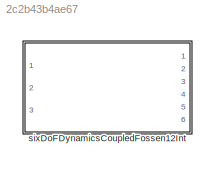
MODEL slx_2c2b43b4ae67
KIND library
CONFIG AbsTol = auto
CONFIG EnableMultiTasking = off
CONFIG FixedStep = auto
CONFIG MaxStep = auto
CONFIG MinStep = auto
CONFIG RelTol = 1e-3
CONFIG SampleTimeConstraint = Unconstrained
CONFIG Solver = VariableStepAuto
CONFIG SolverName = VariableStepAuto
CONFIG StartTime = 0.0
CONFIG StopTime = 10.0
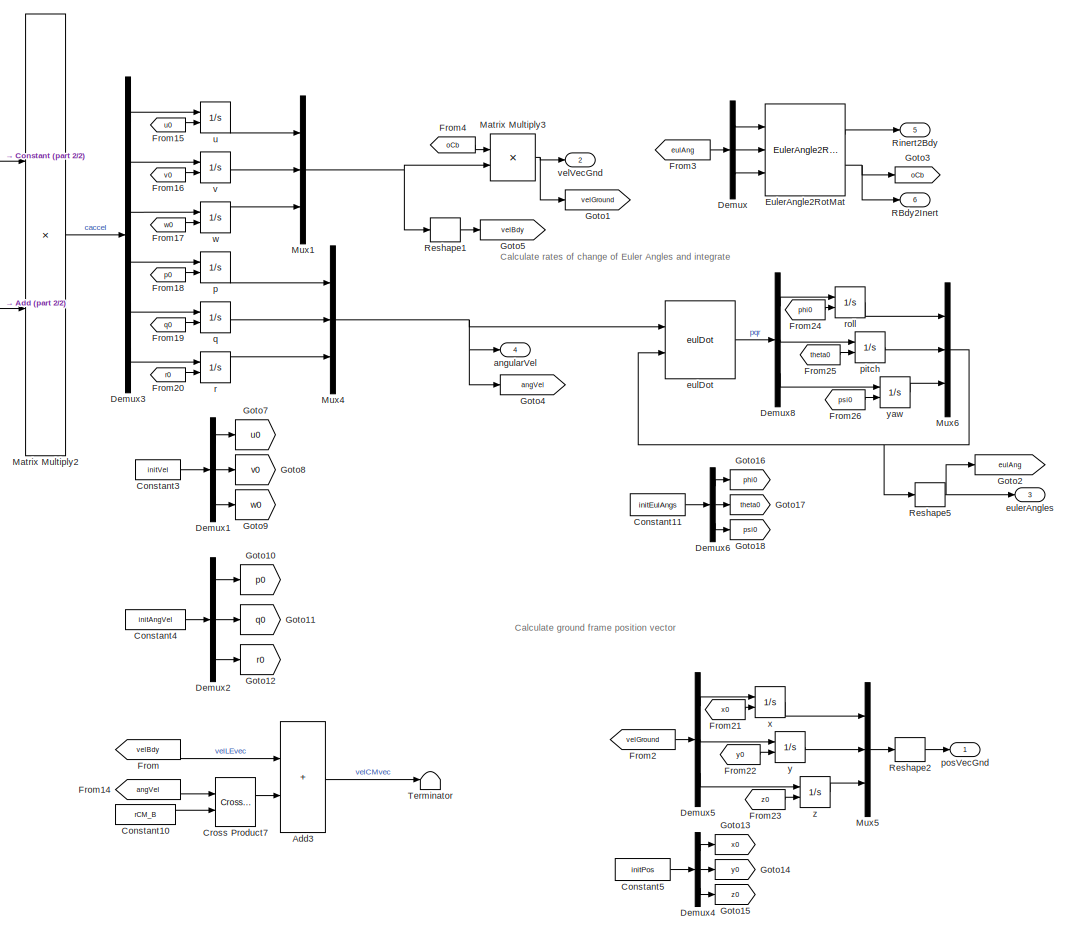
[diagram: sixDoFDynamicsCoupledFossen12Int - part 1/2, center side, full height]
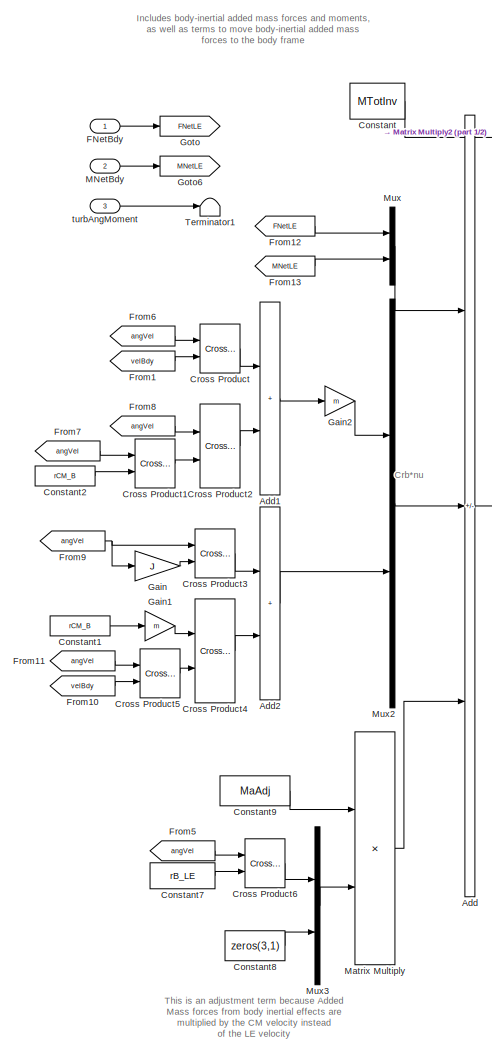
[diagram: sixDoFDynamicsCoupledFossen12Int - part 2/2, left side, full height]
BLOCK [SubSystem] sixDoFDynamicsCoupledFossen12Int
  Ports = [3, 6]
  RequestExecContextInheritance = off
  VariantControl = VSS_sixDoFDynamics_sixDoFDynamicsCoupledFossen
BLOCK [Sum] sixDoFDynamicsCoupledFossen12Int/Add
  IconShape = rectangular
  Inputs = +-+
  Ports = [3, 1]
BLOCK [Sum] sixDoFDynamicsCoupledFossen12Int/Add1
  IconShape = rectangular
  Ports = [2, 1]
BLOCK [Sum] sixDoFDynamicsCoupledFossen12Int/Add2
  IconShape = rectangular
  Ports = [2, 1]
BLOCK [Sum] sixDoFDynamicsCoupledFossen12Int/Add3
  IconShape = rectangular
  Ports = [2, 1]
BLOCK [Constant] sixDoFDynamicsCoupledFossen12Int/Constant
  Value = MTotInv
  VectorParams1D = off
BLOCK [Constant] sixDoFDynamicsCoupledFossen12Int/Constant1
  Value = rCM_B
BLOCK [Constant] sixDoFDynamicsCoupledFossen12Int/Constant10
  Value = rCM_B
BLOCK [Constant] sixDoFDynamicsCoupledFossen12Int/Constant11
  Value = initEulAngs
BLOCK [Constant] sixDoFDynamicsCoupledFossen12Int/Constant2
  Value = rCM_B
BLOCK [Constant] sixDoFDynamicsCoupledFossen12Int/Constant3
  Value = initVel
BLOCK [Constant] sixDoFDynamicsCoupledFossen12Int/Constant4
  Value = initAngVel
BLOCK [Constant] sixDoFDynamicsCoupledFossen12Int/Constant5
  Value = initPos
BLOCK [Constant] sixDoFDynamicsCoupledFossen12Int/Constant7
  Value = rB_LE
BLOCK [Constant] sixDoFDynamicsCoupledFossen12Int/Constant8
  Value = zeros(3,1)
BLOCK [Constant] sixDoFDynamicsCoupledFossen12Int/Constant9
  Value = MaAdj
BLOCK [Reference] sixDoFDynamicsCoupledFossen12Int/Cross Product  REF=vrlib/Utilities/Cross Product
  Ports = [2, 1]
  SourceBlock = vrlib/Utilities/Cross Product
  SourceProductBaseCode = SL
  SourceType = Cross Product
BLOCK [Reference] sixDoFDynamicsCoupledFossen12Int/Cross Product1  REF=vrlib/Utilities/Cross Product
  Ports = [2, 1]
  SourceBlock = vrlib/Utilities/Cross Product
  SourceProductBaseCode = SL
  SourceType = Cross Product
BLOCK [Reference] sixDoFDynamicsCoupledFossen12Int/Cross Product2  REF=vrlib/Utilities/Cross Product
  Ports = [2, 1]
  SourceBlock = vrlib/Utilities/Cross Product
  SourceProductBaseCode = SL
  SourceType = Cross Product
BLOCK [Reference] sixDoFDynamicsCoupledFossen12Int/Cross Product3  REF=vrlib/Utilities/Cross Product
  Ports = [2, 1]
  SourceBlock = vrlib/Utilities/Cross Product
  SourceProductBaseCode = SL
  SourceType = Cross Product
BLOCK [Reference] sixDoFDynamicsCoupledFossen12Int/Cross Product4  REF=vrlib/Utilities/Cross Product
  Ports = [2, 1]
  SourceBlock = vrlib/Utilities/Cross Product
  SourceProductBaseCode = SL
  SourceType = Cross Product
BLOCK [Reference] sixDoFDynamicsCoupledFossen12Int/Cross Product5  REF=vrlib/Utilities/Cross Product
  Ports = [2, 1]
  SourceBlock = vrlib/Utilities/Cross Product
  SourceProductBaseCode = SL
  SourceType = Cross Product
BLOCK [Reference] sixDoFDynamicsCoupledFossen12Int/Cross Product6  REF=vrlib/Utilities/Cross Product
  Ports = [2, 1]
  SourceBlock = vrlib/Utilities/Cross Product
  SourceProductBaseCode = SL
  SourceType = Cross Product
BLOCK [Reference] sixDoFDynamicsCoupledFossen12Int/Cross Product7  REF=vrlib/Utilities/Cross Product
  Ports = [2, 1]
  SourceBlock = vrlib/Utilities/Cross Product
  SourceProductBaseCode = SL
  SourceType = Cross Product
BLOCK [Demux] sixDoFDynamicsCoupledFossen12Int/Demux
  Outputs = 3
  Ports = [1, 3]
BLOCK [Demux] sixDoFDynamicsCoupledFossen12Int/Demux1
  Outputs = 3
  Ports = [1, 3]
BLOCK [Demux] sixDoFDynamicsCoupledFossen12Int/Demux2
  Outputs = 3
  Ports = [1, 3]
BLOCK [Demux] sixDoFDynamicsCoupledFossen12Int/Demux3
  Outputs = 6
  Ports = [1, 6]
BLOCK [Demux] sixDoFDynamicsCoupledFossen12Int/Demux4
  Outputs = 3
  Ports = [1, 3]
BLOCK [Demux] sixDoFDynamicsCoupledFossen12Int/Demux5
  Outputs = 3
  Ports = [1, 3]
BLOCK [Demux] sixDoFDynamicsCoupledFossen12Int/Demux6
  Outputs = 3
  Ports = [1, 3]
BLOCK [Demux] sixDoFDynamicsCoupledFossen12Int/Demux8
  Outputs = 3
  Ports = [1, 3]
BLOCK [Reference] sixDoFDynamicsCoupledFossen12Int/EulerAngle2RotMat  REF=eulAng2RotMat_ul/EulerAngle2RotMat
  Ports = [3, 2]
  SourceBlock = eulAng2RotMat_ul/EulerAngle2RotMat
  SourceType = SubSystem
BLOCK [Inport] sixDoFDynamicsCoupledFossen12Int/FNetBdy
BLOCK [From] sixDoFDynamicsCoupledFossen12Int/From
  GotoTag = velBdy
BLOCK [From] sixDoFDynamicsCoupledFossen12Int/From1
  GotoTag = velBdy
BLOCK [From] sixDoFDynamicsCoupledFossen12Int/From10
  GotoTag = velBdy
BLOCK [From] sixDoFDynamicsCoupledFossen12Int/From11
  GotoTag = angVel
BLOCK [From] sixDoFDynamicsCoupledFossen12Int/From12
  GotoTag = FNetLE
BLOCK [From] sixDoFDynamicsCoupledFossen12Int/From13
  GotoTag = MNetLE
BLOCK [From] sixDoFDynamicsCoupledFossen12Int/From14
  GotoTag = angVel
BLOCK [From] sixDoFDynamicsCoupledFossen12Int/From15
  GotoTag = u0
BLOCK [From] sixDoFDynamicsCoupledFossen12Int/From16
  GotoTag = v0
BLOCK [From] sixDoFDynamicsCoupledFossen12Int/From17
  GotoTag = w0
BLOCK [From] sixDoFDynamicsCoupledFossen12Int/From18
  GotoTag = p0
BLOCK [From] sixDoFDynamicsCoupledFossen12Int/From19
  GotoTag = q0
BLOCK [From] sixDoFDynamicsCoupledFossen12Int/From2
  GotoTag = velGround
BLOCK [From] sixDoFDynamicsCoupledFossen12Int/From20
  GotoTag = r0
BLOCK [From] sixDoFDynamicsCoupledFossen12Int/From21
  GotoTag = x0
BLOCK [From] sixDoFDynamicsCoupledFossen12Int/From22
  GotoTag = y0
BLOCK [From] sixDoFDynamicsCoupledFossen12Int/From23
  GotoTag = z0
BLOCK [From] sixDoFDynamicsCoupledFossen12Int/From24
  GotoTag = phi0
BLOCK [From] sixDoFDynamicsCoupledFossen12Int/From25
  GotoTag = theta0
BLOCK [From] sixDoFDynamicsCoupledFossen12Int/From26
  GotoTag = psi0
BLOCK [From] sixDoFDynamicsCoupledFossen12Int/From3
  GotoTag = eulAng
BLOCK [From] sixDoFDynamicsCoupledFossen12Int/From4
  GotoTag = oCb
BLOCK [From] sixDoFDynamicsCoupledFossen12Int/From5
  GotoTag = angVel
BLOCK [From] sixDoFDynamicsCoupledFossen12Int/From6
  GotoTag = angVel
BLOCK [From] sixDoFDynamicsCoupledFossen12Int/From7
  GotoTag = angVel
BLOCK [From] sixDoFDynamicsCoupledFossen12Int/From8
  GotoTag = angVel
BLOCK [From] sixDoFDynamicsCoupledFossen12Int/From9
  GotoTag = angVel
BLOCK [Gain] sixDoFDynamicsCoupledFossen12Int/Gain
  Gain = J
  Multiplication = Matrix(K*u)
BLOCK [Gain] sixDoFDynamicsCoupledFossen12Int/Gain1
  Gain = m
BLOCK [Gain] sixDoFDynamicsCoupledFossen12Int/Gain2
  Gain = m
BLOCK [Goto] sixDoFDynamicsCoupledFossen12Int/Goto
  GotoTag = FNetLE
BLOCK [Goto] sixDoFDynamicsCoupledFossen12Int/Goto1
  GotoTag = velGround
BLOCK [Goto] sixDoFDynamicsCoupledFossen12Int/Goto10
  GotoTag = p0
BLOCK [Goto] sixDoFDynamicsCoupledFossen12Int/Goto11
  GotoTag = q0
BLOCK [Goto] sixDoFDynamicsCoupledFossen12Int/Goto12
  GotoTag = r0
BLOCK [Goto] sixDoFDynamicsCoupledFossen12Int/Goto13
  GotoTag = x0
BLOCK [Goto] sixDoFDynamicsCoupledFossen12Int/Goto14
  GotoTag = y0
BLOCK [Goto] sixDoFDynamicsCoupledFossen12Int/Goto15
  GotoTag = z0
BLOCK [Goto] sixDoFDynamicsCoupledFossen12Int/Goto16
  GotoTag = phi0
BLOCK [Goto] sixDoFDynamicsCoupledFossen12Int/Goto17
  GotoTag = theta0
BLOCK [Goto] sixDoFDynamicsCoupledFossen12Int/Goto18
  GotoTag = psi0
BLOCK [Goto] sixDoFDynamicsCoupledFossen12Int/Goto2
  GotoTag = eulAng
BLOCK [Goto] sixDoFDynamicsCoupledFossen12Int/Goto3
  GotoTag = oCb
BLOCK [Goto] sixDoFDynamicsCoupledFossen12Int/Goto4
  GotoTag = angVel
BLOCK [Goto] sixDoFDynamicsCoupledFossen12Int/Goto5
  GotoTag = velBdy
BLOCK [Goto] sixDoFDynamicsCoupledFossen12Int/Goto6
  GotoTag = MNetLE
BLOCK [Goto] sixDoFDynamicsCoupledFossen12Int/Goto7
  GotoTag = u0
BLOCK [Goto] sixDoFDynamicsCoupledFossen12Int/Goto8
  GotoTag = v0
BLOCK [Goto] sixDoFDynamicsCoupledFossen12Int/Goto9
  GotoTag = w0
BLOCK [Inport] sixDoFDynamicsCoupledFossen12Int/MNetBdy
  Port = 2
BLOCK [Product] sixDoFDynamicsCoupledFossen12Int/Matrix Multiply
  Multiplication = Matrix(*)
  Ports = [2, 1]
BLOCK [Product] sixDoFDynamicsCoupledFossen12Int/Matrix Multiply2
  Multiplication = Matrix(*)
  Ports = [2, 1]
BLOCK [Product] sixDoFDynamicsCoupledFossen12Int/Matrix Multiply3
  Multiplication = Matrix(*)
  Ports = [2, 1]
BLOCK [Mux] sixDoFDynamicsCoupledFossen12Int/Mux
  DisplayOption = bar
  Inputs = 2
  Ports = [2, 1]
BLOCK [Mux] sixDoFDynamicsCoupledFossen12Int/Mux1
  DisplayOption = bar
  Inputs = 3
  Ports = [3, 1]
BLOCK [Mux] sixDoFDynamicsCoupledFossen12Int/Mux2
  DisplayOption = bar
  Inputs = 2
  Ports = [2, 1]
BLOCK [Mux] sixDoFDynamicsCoupledFossen12Int/Mux3
  DisplayOption = bar
  Inputs = 2
  Ports = [2, 1]
BLOCK [Mux] sixDoFDynamicsCoupledFossen12Int/Mux4
  DisplayOption = bar
  Inputs = 3
  Ports = [3, 1]
BLOCK [Mux] sixDoFDynamicsCoupledFossen12Int/Mux5
  DisplayOption = bar
  Inputs = 3
  Ports = [3, 1]
BLOCK [Mux] sixDoFDynamicsCoupledFossen12Int/Mux6
  DisplayOption = bar
  Inputs = 3
  Ports = [3, 1]
BLOCK [Outport] sixDoFDynamicsCoupledFossen12Int/RBdy2Inert
  Port = 6
  VectorParamsAs1DForOutWhenUnconnected = off
BLOCK [Reshape] sixDoFDynamicsCoupledFossen12Int/Reshape1
  OutputDimensionality = Column vector (2-D)
  Ports = [1, 1]
BLOCK [Reshape] sixDoFDynamicsCoupledFossen12Int/Reshape2
  OutputDimensionality = Column vector (2-D)
  Ports = [1, 1]
BLOCK [Reshape] sixDoFDynamicsCoupledFossen12Int/Reshape5
  OutputDimensionality = Column vector (2-D)
  Ports = [1, 1]
BLOCK [Outport] sixDoFDynamicsCoupledFossen12Int/Rinert2Bdy
  Port = 5
  VectorParamsAs1DForOutWhenUnconnected = off
BLOCK [Terminator] sixDoFDynamicsCoupledFossen12Int/Terminator
BLOCK [Terminator] sixDoFDynamicsCoupledFossen12Int/Terminator1
BLOCK [Outport] sixDoFDynamicsCoupledFossen12Int/angularVel
  Port = 4
  VectorParamsAs1DForOutWhenUnconnected = off
BLOCK [Reference] sixDoFDynamicsCoupledFossen12Int/eulDot  REF=eulDot/eulDot
  Ports = [2, 1]
  SourceBlock = eulDot/eulDot
  SourceType = SubSystem
BLOCK [Outport] sixDoFDynamicsCoupledFossen12Int/eulerAngles
  Port = 3
  VectorParamsAs1DForOutWhenUnconnected = off
BLOCK [Integrator] sixDoFDynamicsCoupledFossen12Int/p
  ContinuousStateAttributes = 'p'
  InitialConditionSource = external
  Ports = [2, 1]
BLOCK [Integrator] sixDoFDynamicsCoupledFossen12Int/pitch
  ContinuousStateAttributes = 'pitch'
  InitialConditionSource = external
  Ports = [2, 1]
BLOCK [Outport] sixDoFDynamicsCoupledFossen12Int/posVecGnd
  VectorParamsAs1DForOutWhenUnconnected = off
BLOCK [Integrator] sixDoFDynamicsCoupledFossen12Int/q
  ContinuousStateAttributes = 'q'
  InitialConditionSource = external
  Ports = [2, 1]
BLOCK [Integrator] sixDoFDynamicsCoupledFossen12Int/r
  ContinuousStateAttributes = 'r'
  InitialConditionSource = external
  Ports = [2, 1]
BLOCK [Integrator] sixDoFDynamicsCoupledFossen12Int/roll
  ContinuousStateAttributes = 'roll'
  InitialConditionSource = external
  Ports = [2, 1]
BLOCK [Inport] sixDoFDynamicsCoupledFossen12Int/turbAngMoment
  Port = 3
BLOCK [Integrator] sixDoFDynamicsCoupledFossen12Int/u
  ContinuousStateAttributes = 'u'
  InitialConditionSource = external
  Ports = [2, 1]
BLOCK [Integrator] sixDoFDynamicsCoupledFossen12Int/v
  ContinuousStateAttributes = 'v'
  InitialConditionSource = external
  Ports = [2, 1]
BLOCK [Outport] sixDoFDynamicsCoupledFossen12Int/velVecGnd
  Port = 2
  VectorParamsAs1DForOutWhenUnconnected = off
BLOCK [Integrator] sixDoFDynamicsCoupledFossen12Int/w
  ContinuousStateAttributes = 'w'
  InitialConditionSource = external
  Ports = [2, 1]
BLOCK [Integrator] sixDoFDynamicsCoupledFossen12Int/x
  ContinuousStateAttributes = 'x'
  InitialConditionSource = external
  Ports = [2, 1]
BLOCK [Integrator] sixDoFDynamicsCoupledFossen12Int/y
  ContinuousStateAttributes = 'y'
  InitialConditionSource = external
  Ports = [2, 1]
BLOCK [Integrator] sixDoFDynamicsCoupledFossen12Int/yaw
  ContinuousStateAttributes = 'yaw'
  InitialConditionSource = external
  Ports = [2, 1]
BLOCK [Integrator] sixDoFDynamicsCoupledFossen12Int/z
  ContinuousStateAttributes = 'z'
  InitialConditionSource = external
  Ports = [2, 1]
ANNOTATION sixDoFDynamicsCoupledFossen12Int: Includes body-inertial added mass forces and moments, as well as terms to move body-inertial added mass forces to the body frame
ANNOTATION sixDoFDynamicsCoupledFossen12Int: This is an adjustment term because Added Mass forces from body inertial effects are multiplied by the CM velocity instead of the LE velocity
ANNOTATION sixDoFDynamicsCoupledFossen12Int: Calculate ground frame position vector
ANNOTATION sixDoFDynamicsCoupledFossen12Int: Calculate rates of change of Euler Angles and integrate
ANNOTATION sixDoFDynamicsCoupledFossen12Int: Crb*nu
LINE sixDoFDynamicsCoupledFossen12Int/Add1:1 -> sixDoFDynamicsCoupledFossen12Int/Gain2:1
LINE sixDoFDynamicsCoupledFossen12Int/Add2:1 -> sixDoFDynamicsCoupledFossen12Int/Mux2:2
LINE sixDoFDynamicsCoupledFossen12Int/Add3:1 -> sixDoFDynamicsCoupledFossen12Int/Terminator:1
LINE sixDoFDynamicsCoupledFossen12Int/Add:1 -> sixDoFDynamicsCoupledFossen12Int/Matrix Multiply2:2
LINE sixDoFDynamicsCoupledFossen12Int/Constant10:1 -> sixDoFDynamicsCoupledFossen12Int/Cross Product7:2
LINE sixDoFDynamicsCoupledFossen12Int/Constant11:1 -> sixDoFDynamicsCoupledFossen12Int/Demux6:1
LINE sixDoFDynamicsCoupledFossen12Int/Constant1:1 -> sixDoFDynamicsCoupledFossen12Int/Gain1:1
LINE sixDoFDynamicsCoupledFossen12Int/Constant2:1 -> sixDoFDynamicsCoupledFossen12Int/Cross Product1:2
LINE sixDoFDynamicsCoupledFossen12Int/Constant3:1 -> sixDoFDynamicsCoupledFossen12Int/Demux1:1
LINE sixDoFDynamicsCoupledFossen12Int/Constant4:1 -> sixDoFDynamicsCoupledFossen12Int/Demux2:1
LINE sixDoFDynamicsCoupledFossen12Int/Constant5:1 -> sixDoFDynamicsCoupledFossen12Int/Demux4:1
LINE sixDoFDynamicsCoupledFossen12Int/Constant7:1 -> sixDoFDynamicsCoupledFossen12Int/Cross Product6:2
LINE sixDoFDynamicsCoupledFossen12Int/Constant8:1 -> sixDoFDynamicsCoupledFossen12Int/Mux3:2
LINE sixDoFDynamicsCoupledFossen12Int/Constant9:1 -> sixDoFDynamicsCoupledFossen12Int/Matrix Multiply:1
LINE sixDoFDynamicsCoupledFossen12Int/Constant:1 -> sixDoFDynamicsCoupledFossen12Int/Matrix Multiply2:1
LINE sixDoFDynamicsCoupledFossen12Int/Cross Product1:1 -> sixDoFDynamicsCoupledFossen12Int/Cross Product2:2
LINE sixDoFDynamicsCoupledFossen12Int/Cross Product2:1 -> sixDoFDynamicsCoupledFossen12Int/Add1:2
LINE sixDoFDynamicsCoupledFossen12Int/Cross Product3:1 -> sixDoFDynamicsCoupledFossen12Int/Add2:1
LINE sixDoFDynamicsCoupledFossen12Int/Cross Product4:1 -> sixDoFDynamicsCoupledFossen12Int/Add2:2
LINE sixDoFDynamicsCoupledFossen12Int/Cross Product5:1 -> sixDoFDynamicsCoupledFossen12Int/Cross Product4:2
LINE sixDoFDynamicsCoupledFossen12Int/Cross Product6:1 -> sixDoFDynamicsCoupledFossen12Int/Mux3:1
LINE sixDoFDynamicsCoupledFossen12Int/Cross Product7:1 -> sixDoFDynamicsCoupledFossen12Int/Add3:2
LINE sixDoFDynamicsCoupledFossen12Int/Cross Product:1 -> sixDoFDynamicsCoupledFossen12Int/Add1:1
LINE sixDoFDynamicsCoupledFossen12Int/Demux1:1 -> sixDoFDynamicsCoupledFossen12Int/Goto7:1
LINE sixDoFDynamicsCoupledFossen12Int/Demux1:2 -> sixDoFDynamicsCoupledFossen12Int/Goto8:1
LINE sixDoFDynamicsCoupledFossen12Int/Demux1:3 -> sixDoFDynamicsCoupledFossen12Int/Goto9:1
LINE sixDoFDynamicsCoupledFossen12Int/Demux2:1 -> sixDoFDynamicsCoupledFossen12Int/Goto10:1
LINE sixDoFDynamicsCoupledFossen12Int/Demux2:2 -> sixDoFDynamicsCoupledFossen12Int/Goto11:1
LINE sixDoFDynamicsCoupledFossen12Int/Demux2:3 -> sixDoFDynamicsCoupledFossen12Int/Goto12:1
LINE sixDoFDynamicsCoupledFossen12Int/Demux3:1 -> sixDoFDynamicsCoupledFossen12Int/u:1
LINE sixDoFDynamicsCoupledFossen12Int/Demux3:2 -> sixDoFDynamicsCoupledFossen12Int/v:1
LINE sixDoFDynamicsCoupledFossen12Int/Demux3:3 -> sixDoFDynamicsCoupledFossen12Int/w:1
LINE sixDoFDynamicsCoupledFossen12Int/Demux3:4 -> sixDoFDynamicsCoupledFossen12Int/p:1
LINE sixDoFDynamicsCoupledFossen12Int/Demux3:5 -> sixDoFDynamicsCoupledFossen12Int/q:1
LINE sixDoFDynamicsCoupledFossen12Int/Demux3:6 -> sixDoFDynamicsCoupledFossen12Int/r:1
LINE sixDoFDynamicsCoupledFossen12Int/Demux4:1 -> sixDoFDynamicsCoupledFossen12Int/Goto13:1
LINE sixDoFDynamicsCoupledFossen12Int/Demux4:2 -> sixDoFDynamicsCoupledFossen12Int/Goto14:1
LINE sixDoFDynamicsCoupledFossen12Int/Demux4:3 -> sixDoFDynamicsCoupledFossen12Int/Goto15:1
LINE sixDoFDynamicsCoupledFossen12Int/Demux5:1 -> sixDoFDynamicsCoupledFossen12Int/x:1
LINE sixDoFDynamicsCoupledFossen12Int/Demux5:2 -> sixDoFDynamicsCoupledFossen12Int/y:1
LINE sixDoFDynamicsCoupledFossen12Int/Demux5:3 -> sixDoFDynamicsCoupledFossen12Int/z:1
LINE sixDoFDynamicsCoupledFossen12Int/Demux6:1 -> sixDoFDynamicsCoupledFossen12Int/Goto16:1
LINE sixDoFDynamicsCoupledFossen12Int/Demux6:2 -> sixDoFDynamicsCoupledFossen12Int/Goto17:1
LINE sixDoFDynamicsCoupledFossen12Int/Demux6:3 -> sixDoFDynamicsCoupledFossen12Int/Goto18:1
LINE sixDoFDynamicsCoupledFossen12Int/Demux8:1 -> sixDoFDynamicsCoupledFossen12Int/roll:1
LINE sixDoFDynamicsCoupledFossen12Int/Demux8:2 -> sixDoFDynamicsCoupledFossen12Int/pitch:1
LINE sixDoFDynamicsCoupledFossen12Int/Demux8:3 -> sixDoFDynamicsCoupledFossen12Int/yaw:1
LINE sixDoFDynamicsCoupledFossen12Int/Demux:1 -> sixDoFDynamicsCoupledFossen12Int/EulerAngle2RotMat:1
LINE sixDoFDynamicsCoupledFossen12Int/Demux:2 -> sixDoFDynamicsCoupledFossen12Int/EulerAngle2RotMat:2
LINE sixDoFDynamicsCoupledFossen12Int/Demux:3 -> sixDoFDynamicsCoupledFossen12Int/EulerAngle2RotMat:3
LINE sixDoFDynamicsCoupledFossen12Int/EulerAngle2RotMat:1 -> sixDoFDynamicsCoupledFossen12Int/Rinert2Bdy:1
NET sixDoFDynamicsCoupledFossen12Int/EulerAngle2RotMat:2 -> sixDoFDynamicsCoupledFossen12Int/Goto3:1, sixDoFDynamicsCoupledFossen12Int/RBdy2Inert:1
LINE sixDoFDynamicsCoupledFossen12Int/FNetBdy:1 -> sixDoFDynamicsCoupledFossen12Int/Goto:1
LINE sixDoFDynamicsCoupledFossen12Int/From10:1 -> sixDoFDynamicsCoupledFossen12Int/Cross Product5:2
LINE sixDoFDynamicsCoupledFossen12Int/From11:1 -> sixDoFDynamicsCoupledFossen12Int/Cross Product5:1
LINE sixDoFDynamicsCoupledFossen12Int/From12:1 -> sixDoFDynamicsCoupledFossen12Int/Mux:1
LINE sixDoFDynamicsCoupledFossen12Int/From13:1 -> sixDoFDynamicsCoupledFossen12Int/Mux:2
LINE sixDoFDynamicsCoupledFossen12Int/From14:1 -> sixDoFDynamicsCoupledFossen12Int/Cross Product7:1
LINE sixDoFDynamicsCoupledFossen12Int/From15:1 -> sixDoFDynamicsCoupledFossen12Int/u:2
LINE sixDoFDynamicsCoupledFossen12Int/From16:1 -> sixDoFDynamicsCoupledFossen12Int/v:2
LINE sixDoFDynamicsCoupledFossen12Int/From17:1 -> sixDoFDynamicsCoupledFossen12Int/w:2
LINE sixDoFDynamicsCoupledFossen12Int/From18:1 -> sixDoFDynamicsCoupledFossen12Int/p:2
LINE sixDoFDynamicsCoupledFossen12Int/From19:1 -> sixDoFDynamicsCoupledFossen12Int/q:2
LINE sixDoFDynamicsCoupledFossen12Int/From1:1 -> sixDoFDynamicsCoupledFossen12Int/Cross Product:2
LINE sixDoFDynamicsCoupledFossen12Int/From20:1 -> sixDoFDynamicsCoupledFossen12Int/r:2
LINE sixDoFDynamicsCoupledFossen12Int/From21:1 -> sixDoFDynamicsCoupledFossen12Int/x:2
LINE sixDoFDynamicsCoupledFossen12Int/From22:1 -> sixDoFDynamicsCoupledFossen12Int/y:2
LINE sixDoFDynamicsCoupledFossen12Int/From23:1 -> sixDoFDynamicsCoupledFossen12Int/z:2
LINE sixDoFDynamicsCoupledFossen12Int/From24:1 -> sixDoFDynamicsCoupledFossen12Int/roll:2
LINE sixDoFDynamicsCoupledFossen12Int/From25:1 -> sixDoFDynamicsCoupledFossen12Int/pitch:2
LINE sixDoFDynamicsCoupledFossen12Int/From26:1 -> sixDoFDynamicsCoupledFossen12Int/yaw:2
LINE sixDoFDynamicsCoupledFossen12Int/From2:1 -> sixDoFDynamicsCoupledFossen12Int/Demux5:1
LINE sixDoFDynamicsCoupledFossen12Int/From3:1 -> sixDoFDynamicsCoupledFossen12Int/Demux:1
LINE sixDoFDynamicsCoupledFossen12Int/From4:1 -> sixDoFDynamicsCoupledFossen12Int/Matrix Multiply3:1
LINE sixDoFDynamicsCoupledFossen12Int/From5:1 -> sixDoFDynamicsCoupledFossen12Int/Cross Product6:1
LINE sixDoFDynamicsCoupledFossen12Int/From6:1 -> sixDoFDynamicsCoupledFossen12Int/Cross Product:1
LINE sixDoFDynamicsCoupledFossen12Int/From7:1 -> sixDoFDynamicsCoupledFossen12Int/Cross Product1:1
LINE sixDoFDynamicsCoupledFossen12Int/From8:1 -> sixDoFDynamicsCoupledFossen12Int/Cross Product2:1
NET sixDoFDynamicsCoupledFossen12Int/From9:1 -> sixDoFDynamicsCoupledFossen12Int/Cross Product3:1, sixDoFDynamicsCoupledFossen12Int/Gain:1
LINE sixDoFDynamicsCoupledFossen12Int/From:1 -> sixDoFDynamicsCoupledFossen12Int/Add3:1
LINE sixDoFDynamicsCoupledFossen12Int/Gain1:1 -> sixDoFDynamicsCoupledFossen12Int/Cross Product4:1
LINE sixDoFDynamicsCoupledFossen12Int/Gain2:1 -> sixDoFDynamicsCoupledFossen12Int/Mux2:1
LINE sixDoFDynamicsCoupledFossen12Int/Gain:1 -> sixDoFDynamicsCoupledFossen12Int/Cross Product3:2
LINE sixDoFDynamicsCoupledFossen12Int/MNetBdy:1 -> sixDoFDynamicsCoupledFossen12Int/Goto6:1
LINE sixDoFDynamicsCoupledFossen12Int/Matrix Multiply2:1 -> sixDoFDynamicsCoupledFossen12Int/Demux3:1
NET sixDoFDynamicsCoupledFossen12Int/Matrix Multiply3:1 -> sixDoFDynamicsCoupledFossen12Int/Goto1:1, sixDoFDynamicsCoupledFossen12Int/velVecGnd:1
LINE sixDoFDynamicsCoupledFossen12Int/Matrix Multiply:1 -> sixDoFDynamicsCoupledFossen12Int/Add:3
NET sixDoFDynamicsCoupledFossen12Int/Mux1:1 -> sixDoFDynamicsCoupledFossen12Int/Matrix Multiply3:2, sixDoFDynamicsCoupledFossen12Int/Reshape1:1
LINE sixDoFDynamicsCoupledFossen12Int/Mux2:1 -> sixDoFDynamicsCoupledFossen12Int/Add:2
LINE sixDoFDynamicsCoupledFossen12Int/Mux3:1 -> sixDoFDynamicsCoupledFossen12Int/Matrix Multiply:2
NET sixDoFDynamicsCoupledFossen12Int/Mux4:1 -> sixDoFDynamicsCoupledFossen12Int/Goto4:1, sixDoFDynamicsCoupledFossen12Int/angularVel:1, sixDoFDynamicsCoupledFossen12Int/eulDot:1
LINE sixDoFDynamicsCoupledFossen12Int/Mux5:1 -> sixDoFDynamicsCoupledFossen12Int/Reshape2:1
NET sixDoFDynamicsCoupledFossen12Int/Mux6:1 -> sixDoFDynamicsCoupledFossen12Int/Reshape5:1, sixDoFDynamicsCoupledFossen12Int/eulDot:2
LINE sixDoFDynamicsCoupledFossen12Int/Mux:1 -> sixDoFDynamicsCoupledFossen12Int/Add:1
LINE sixDoFDynamicsCoupledFossen12Int/Reshape1:1 -> sixDoFDynamicsCoupledFossen12Int/Goto5:1
LINE sixDoFDynamicsCoupledFossen12Int/Reshape2:1 -> sixDoFDynamicsCoupledFossen12Int/posVecGnd:1
NET sixDoFDynamicsCoupledFossen12Int/Reshape5:1 -> sixDoFDynamicsCoupledFossen12Int/Goto2:1, sixDoFDynamicsCoupledFossen12Int/eulerAngles:1
LINE sixDoFDynamicsCoupledFossen12Int/eulDot:1 -> sixDoFDynamicsCoupledFossen12Int/Demux8:1
LINE sixDoFDynamicsCoupledFossen12Int/p:1 -> sixDoFDynamicsCoupledFossen12Int/Mux4:1
LINE sixDoFDynamicsCoupledFossen12Int/pitch:1 -> sixDoFDynamicsCoupledFossen12Int/Mux6:2
LINE sixDoFDynamicsCoupledFossen12Int/q:1 -> sixDoFDynamicsCoupledFossen12Int/Mux4:2
LINE sixDoFDynamicsCoupledFossen12Int/r:1 -> sixDoFDynamicsCoupledFossen12Int/Mux4:3
LINE sixDoFDynamicsCoupledFossen12Int/roll:1 -> sixDoFDynamicsCoupledFossen12Int/Mux6:1
LINE sixDoFDynamicsCoupledFossen12Int/turbAngMoment:1 -> sixDoFDynamicsCoupledFossen12Int/Terminator1:1
LINE sixDoFDynamicsCoupledFossen12Int/u:1 -> sixDoFDynamicsCoupledFossen12Int/Mux1:1
LINE sixDoFDynamicsCoupledFossen12Int/v:1 -> sixDoFDynamicsCoupledFossen12Int/Mux1:2
LINE sixDoFDynamicsCoupledFossen12Int/w:1 -> sixDoFDynamicsCoupledFossen12Int/Mux1:3
LINE sixDoFDynamicsCoupledFossen12Int/x:1 -> sixDoFDynamicsCoupledFossen12Int/Mux5:1
LINE sixDoFDynamicsCoupledFossen12Int/y:1 -> sixDoFDynamicsCoupledFossen12Int/Mux5:2
LINE sixDoFDynamicsCoupledFossen12Int/yaw:1 -> sixDoFDynamicsCoupledFossen12Int/Mux6:3
LINE sixDoFDynamicsCoupledFossen12Int/z:1 -> sixDoFDynamicsCoupledFossen12Int/Mux5:3
note: NET lines group one-source signal fan-out (src -> all destinations, sorted); 1:1 wires keep LINE
